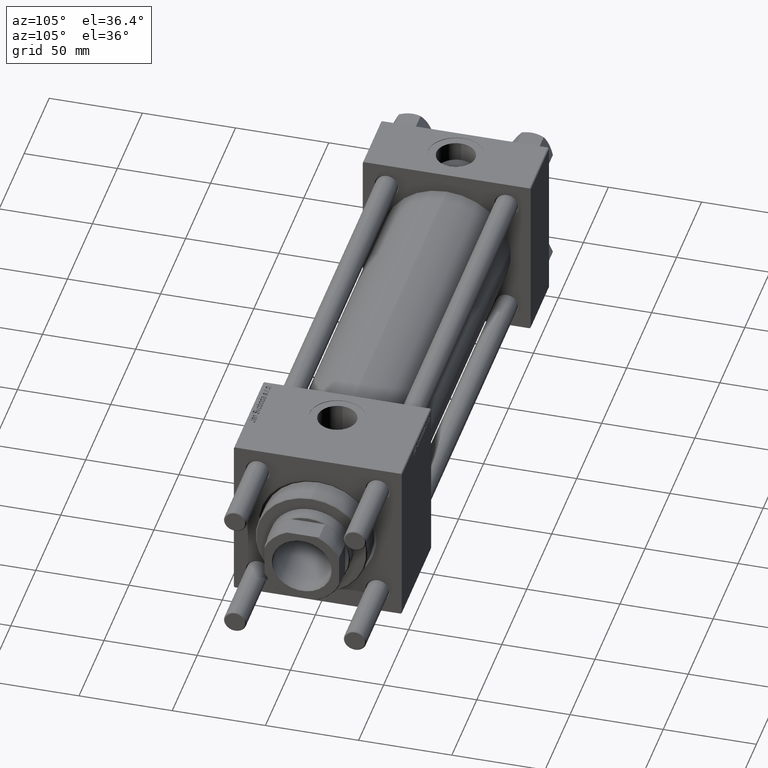
[diagram: clean part render]
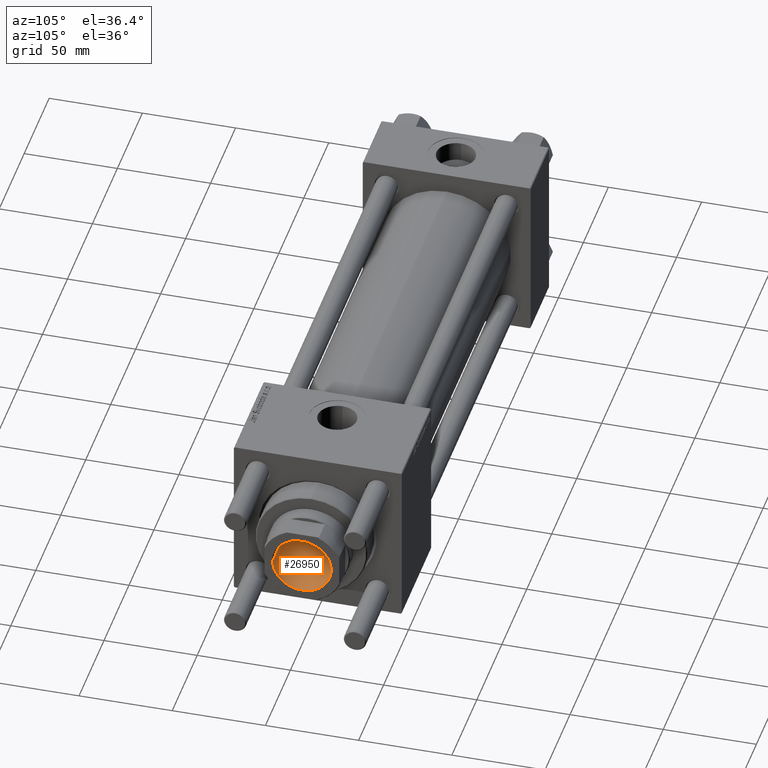
[diagram: same view with one face highlighted and labeled with its STEP entity id]
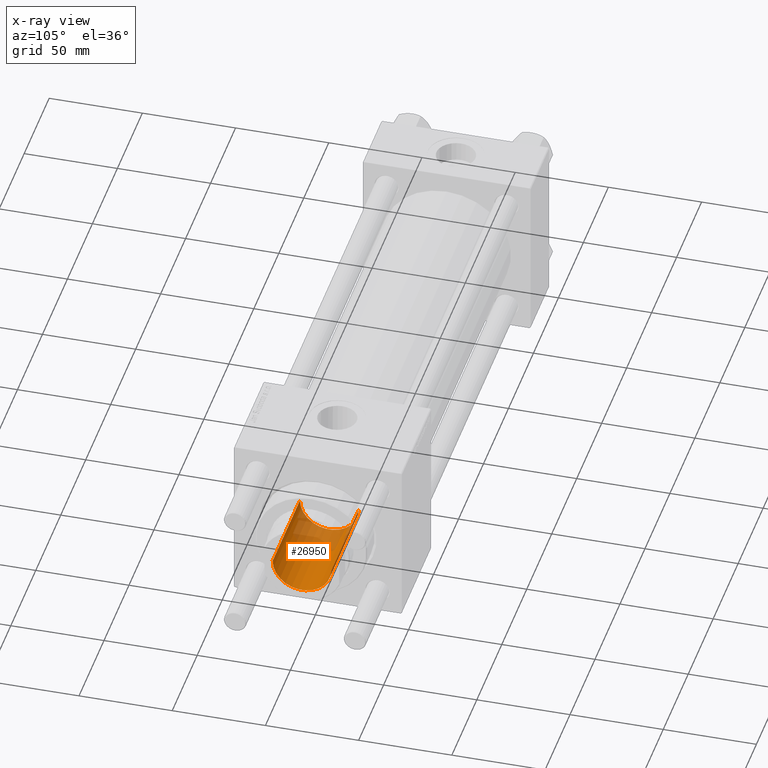
[diagram: x-ray of the same camera — body ghosted, the highlighted face saturated]
A machine part, auxiliary view. The second image highlights one B-rep face of the part: STEP entity #26950.
The next image is the same camera in x-ray: the body ghosted, the highlighted face saturated — about 29% of this face is hidden behind the body in this view.
In plain terms, the highlighted cylindrical surface (edge-blend (fillet) strip) has radius 15.75 mm, axis along (1, 0, 0).
Its self-contained STEP definition (entity closure, byte-faithful):
#724 = DIRECTION ( 'NONE',  ( 1.000000000000000000, 0.000000000000000000, 0.000000000000000000 ) ) ;
#1631 = CARTESIAN_POINT ( 'NONE',  ( 0.000000000000000000, 0.000000000000000000, 235.0000000000000000 ) ) ;
#5742 = CIRCLE ( 'NONE', #20417, 15.74999999999998934 ) ;
#6068 = CARTESIAN_POINT ( 'NONE',  ( -15.74999999999999289, 1.928818708657080556E-15, 289.6999999999998749 ) ) ;
#6461 = LINE ( 'NONE', #46010, #43136 ) ;
#7540 = CARTESIAN_POINT ( 'NONE',  ( -15.74999999999998934, 1.928818708657080161E-15, 235.0000000000000000 ) ) ;
#9227 = VECTOR ( 'NONE', #28439, 1000.000000000000000 ) ;
#10251 = CIRCLE ( 'NONE', #37692, 15.74999999999999289 ) ;
#14191 = FACE_OUTER_BOUND ( 'NONE', #34262, .T. ) ;
#16743 = CARTESIAN_POINT ( 'NONE',  ( 0.000000000000000000, 0.000000000000000000, 289.6999999999998749 ) ) ;
#19437 = EDGE_CURVE ( 'NONE', #35144, #53892, #25024, .T. ) ;
#20417 = AXIS2_PLACEMENT_3D ( 'NONE', #1631, #49201, #54913 ) ;
#21595 = DIRECTION ( 'NONE',  ( 1.000000000000000000, 0.000000000000000000, 0.000000000000000000 ) ) ;
#23363 = CARTESIAN_POINT ( 'NONE',  ( 0.000000000000000000, 0.000000000000000000, 290.0000000000000000 ) ) ;
#24811 = DIRECTION ( 'NONE',  ( -0.000000000000000000, -0.000000000000000000, 1.000000000000000000 ) ) ;
#25024 = LINE ( 'NONE', #46214, #9227 ) ;
#25156 = EDGE_CURVE ( 'NONE', #48977, #27216, #6461, .T. ) ;
#26809 = CYLINDRICAL_SURFACE ( 'NONE', #43180, 15.74999999999999289 ) ;
#26950 = ADVANCED_FACE ( 'NONE', ( #14191 ), #26809, .F. ) ;
#27062 = EDGE_CURVE ( 'NONE', #53892, #27216, #10251, .T. ) ;
#27216 = VERTEX_POINT ( 'NONE', #6068 ) ;
#28439 = DIRECTION ( 'NONE',  ( -0.000000000000000000, -0.000000000000000000, 1.000000000000000000 ) ) ;
#29545 = EDGE_CURVE ( 'NONE', #35144, #48977, #5742, .T. ) ;
#31943 = DIRECTION ( 'NONE',  ( -0.000000000000000000, -0.000000000000000000, 1.000000000000000000 ) ) ;
#34262 = EDGE_LOOP ( 'NONE', ( #55191, #52075, #42640, #39084 ) ) ;
#35144 = VERTEX_POINT ( 'NONE', #55919 ) ;
#37692 = AXIS2_PLACEMENT_3D ( 'NONE', #16743, #47940, #21595 ) ;
#39084 = ORIENTED_EDGE ( 'NONE', *, *, #27062, .T. ) ;
#42640 = ORIENTED_EDGE ( 'NONE', *, *, #19437, .T. ) ;
#43136 = VECTOR ( 'NONE', #24811, 1000.000000000000000 ) ;
#43180 = AXIS2_PLACEMENT_3D ( 'NONE', #23363, #31943, #724 ) ;
#46010 = CARTESIAN_POINT ( 'NONE',  ( -15.74999999999999289, 1.928818708657080556E-15, 290.0000000000000000 ) ) ;
#46214 = CARTESIAN_POINT ( 'NONE',  ( 15.74999999999999289, 0.000000000000000000, 290.0000000000000000 ) ) ;
#47940 = DIRECTION ( 'NONE',  ( 0.000000000000000000, 0.000000000000000000, 1.000000000000000000 ) ) ;
#48977 = VERTEX_POINT ( 'NONE', #7540 ) ;
#49201 = DIRECTION ( 'NONE',  ( -0.000000000000000000, -0.000000000000000000, 1.000000000000000000 ) ) ;
#52075 = ORIENTED_EDGE ( 'NONE', *, *, #29545, .F. ) ;
#53478 = CARTESIAN_POINT ( 'NONE',  ( 15.74999999999999289, 0.000000000000000000, 289.6999999999998749 ) ) ;
#53892 = VERTEX_POINT ( 'NONE', #53478 ) ;
#54913 = DIRECTION ( 'NONE',  ( 1.000000000000000000, 0.000000000000000000, 0.000000000000000000 ) ) ;
#55191 = ORIENTED_EDGE ( 'NONE', *, *, #25156, .F. ) ;
#55919 = CARTESIAN_POINT ( 'NONE',  ( 15.74999999999998934, 0.000000000000000000, 235.0000000000000000 ) ) ;